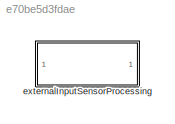
MODEL slx_e70be5d3fdae
KIND library
CONFIG AbsTol = auto
CONFIG EnableMultiTasking = off
CONFIG FixedStep = auto
CONFIG MaxStep = auto
CONFIG MinStep = auto
CONFIG RelTol = 1e-3
CONFIG SampleTimeConstraint = Unconstrained
CONFIG SolverName = VariableStepAuto
CONFIG StartTime = 0.0
CONFIG StopTime = 10.0
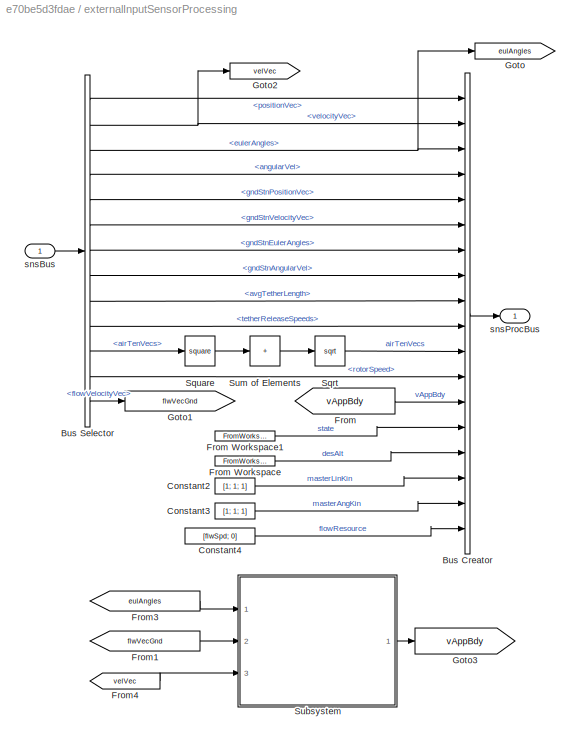
BLOCK [SubSystem] externalInputSensorProcessing
  InitFcn = initializeBussesFromBlock(gcb)
  LoadFcn = initializeBussesFromBlock(gcb)
  Ports = [1, 1]
  RequestExecContextInheritance = off
  StartFcn = initializeBussesFromBlock(gcb)
BLOCK [BusCreator] externalInputSensorProcessing/Bus Creator
  DisplayOption = bar
  InheritFromInputs = on
  Inputs = 18
  NonVirtualBus = on
  OutDataTypeStr = Bus: sensorsProcessingBus
  Ports = [18, 1]
BLOCK [BusSelector] externalInputSensorProcessing/Bus Selector
  OutputSignals = positionVec,velocityVec,eulerAngles,angularVel,gndStnPositionVec,gndStnVelocityVec,gndStnEulerAngles,gndStnAngularVel,avgTetherLength,tetherReleaseSpeeds,airTenVecs,rotorSpeed,flowVelocityVec
  Ports = [1, 13]
BLOCK [Constant] externalInputSensorProcessing/Constant2
  Value = [1; 1; 1]
BLOCK [Constant] externalInputSensorProcessing/Constant3
  Value = [1; 1; 1]
BLOCK [Constant] externalInputSensorProcessing/Constant4
  Value = [flwSpd; 0]
BLOCK [From] externalInputSensorProcessing/From
  GotoTag = vAppBdy
BLOCK [FromWorkspace] externalInputSensorProcessing/From Workspace
  VariableName = tsIn.desAlt
BLOCK [FromWorkspace] externalInputSensorProcessing/From Workspace1
  VariableName = tsIn.state
BLOCK [From] externalInputSensorProcessing/From1
  GotoTag = flwVecGnd
BLOCK [From] externalInputSensorProcessing/From3
  GotoTag = eulAngles
BLOCK [From] externalInputSensorProcessing/From4
  GotoTag = velVec
BLOCK [Goto] externalInputSensorProcessing/Goto
  GotoTag = eulAngles
BLOCK [Goto] externalInputSensorProcessing/Goto1
  GotoTag = flwVecGnd
BLOCK [Goto] externalInputSensorProcessing/Goto2
  GotoTag = velVec
BLOCK [Goto] externalInputSensorProcessing/Goto3
  GotoTag = vAppBdy
BLOCK [Sqrt] externalInputSensorProcessing/Sqrt
BLOCK [Math] externalInputSensorProcessing/Square
  Operator = square
  Ports = [1, 1]
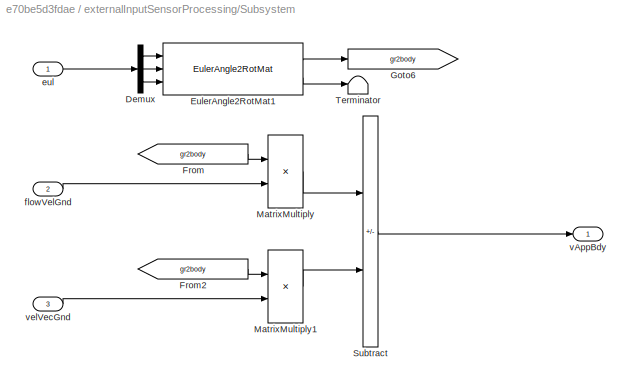
BLOCK [SubSystem] externalInputSensorProcessing/Subsystem
  Ports = [3, 1]
  RequestExecContextInheritance = off
BLOCK [Demux] externalInputSensorProcessing/Subsystem/Demux
  Outputs = 3
  Ports = [1, 3]
BLOCK [Reference] externalInputSensorProcessing/Subsystem/EulerAngle2RotMat1  REF=eulAng2RotMat_ul/EulerAngle2RotMat
  Ports = [3, 2]
  SourceBlock = eulAng2RotMat_ul/EulerAngle2RotMat
  SourceType = SubSystem
BLOCK [From] externalInputSensorProcessing/Subsystem/From
  GotoTag = gr2body
BLOCK [From] externalInputSensorProcessing/Subsystem/From2
  GotoTag = gr2body
BLOCK [Goto] externalInputSensorProcessing/Subsystem/Goto6
  GotoTag = gr2body
BLOCK [Product] externalInputSensorProcessing/Subsystem/MatrixMultiply
  Multiplication = Matrix(*)
  Ports = [2, 1]
BLOCK [Product] externalInputSensorProcessing/Subsystem/MatrixMultiply1
  Multiplication = Matrix(*)
  Ports = [2, 1]
BLOCK [Sum] externalInputSensorProcessing/Subsystem/Subtract
  IconShape = rectangular
  Inputs = +-
  Ports = [2, 1]
BLOCK [Terminator] externalInputSensorProcessing/Subsystem/Terminator
BLOCK [Inport] externalInputSensorProcessing/Subsystem/eul
BLOCK [Inport] externalInputSensorProcessing/Subsystem/flowVelGnd
  Port = 2
BLOCK [Outport] externalInputSensorProcessing/Subsystem/vAppBdy
BLOCK [Inport] externalInputSensorProcessing/Subsystem/velVecGnd
  Port = 3
BLOCK [Sum] externalInputSensorProcessing/Sum of Elements
  IconShape = rectangular
  Inputs = +
  Ports = [1, 1]
BLOCK [Inport] externalInputSensorProcessing/snsBus
  OutDataTypeStr = Bus: sensorsBus
BLOCK [Outport] externalInputSensorProcessing/snsProcBus
  OutDataTypeStr = Bus: sensorsProcessingBus
  VectorParamsAs1DForOutWhenUnconnected = off
LINE externalInputSensorProcessing/Bus Creator:1 -> externalInputSensorProcessing/snsProcBus:1
LINE externalInputSensorProcessing/Bus Selector:1 -> externalInputSensorProcessing/Bus Creator:1
LINE externalInputSensorProcessing/Bus Selector:10 -> externalInputSensorProcessing/Bus Creator:10
LINE externalInputSensorProcessing/Bus Selector:11 -> externalInputSensorProcessing/Square:1
LINE externalInputSensorProcessing/Bus Selector:12 -> externalInputSensorProcessing/Bus Creator:12
LINE externalInputSensorProcessing/Bus Selector:13 -> externalInputSensorProcessing/Goto1:1
NET externalInputSensorProcessing/Bus Selector:2 -> externalInputSensorProcessing/Bus Creator:2, externalInputSensorProcessing/Goto2:1
NET externalInputSensorProcessing/Bus Selector:3 -> externalInputSensorProcessing/Bus Creator:3, externalInputSensorProcessing/Goto:1
LINE externalInputSensorProcessing/Bus Selector:4 -> externalInputSensorProcessing/Bus Creator:4
LINE externalInputSensorProcessing/Bus Selector:5 -> externalInputSensorProcessing/Bus Creator:5
LINE externalInputSensorProcessing/Bus Selector:6 -> externalInputSensorProcessing/Bus Creator:6
LINE externalInputSensorProcessing/Bus Selector:7 -> externalInputSensorProcessing/Bus Creator:7
LINE externalInputSensorProcessing/Bus Selector:8 -> externalInputSensorProcessing/Bus Creator:8
LINE externalInputSensorProcessing/Bus Selector:9 -> externalInputSensorProcessing/Bus Creator:9
LINE externalInputSensorProcessing/Constant2:1 -> externalInputSensorProcessing/Bus Creator:16
LINE externalInputSensorProcessing/Constant3:1 -> externalInputSensorProcessing/Bus Creator:17
LINE externalInputSensorProcessing/Constant4:1 -> externalInputSensorProcessing/Bus Creator:18
LINE externalInputSensorProcessing/From Workspace1:1 -> externalInputSensorProcessing/Bus Creator:14
LINE externalInputSensorProcessing/From Workspace:1 -> externalInputSensorProcessing/Bus Creator:15
LINE externalInputSensorProcessing/From1:1 -> externalInputSensorProcessing/Subsystem:2
LINE externalInputSensorProcessing/From3:1 -> externalInputSensorProcessing/Subsystem:1
LINE externalInputSensorProcessing/From4:1 -> externalInputSensorProcessing/Subsystem:3
LINE externalInputSensorProcessing/From:1 -> externalInputSensorProcessing/Bus Creator:13
LINE externalInputSensorProcessing/Sqrt:1 -> externalInputSensorProcessing/Bus Creator:11
LINE externalInputSensorProcessing/Square:1 -> externalInputSensorProcessing/Sum of Elements:1
LINE externalInputSensorProcessing/Subsystem/Demux:1 -> externalInputSensorProcessing/Subsystem/EulerAngle2RotMat1:1
LINE externalInputSensorProcessing/Subsystem/Demux:2 -> externalInputSensorProcessing/Subsystem/EulerAngle2RotMat1:2
LINE externalInputSensorProcessing/Subsystem/Demux:3 -> externalInputSensorProcessing/Subsystem/EulerAngle2RotMat1:3
LINE externalInputSensorProcessing/Subsystem/EulerAngle2RotMat1:1 -> externalInputSensorProcessing/Subsystem/Goto6:1
LINE externalInputSensorProcessing/Subsystem/EulerAngle2RotMat1:2 -> externalInputSensorProcessing/Subsystem/Terminator:1
LINE externalInputSensorProcessing/Subsystem/From2:1 -> externalInputSensorProcessing/Subsystem/MatrixMultiply1:1
LINE externalInputSensorProcessing/Subsystem/From:1 -> externalInputSensorProcessing/Subsystem/MatrixMultiply:1
LINE externalInputSensorProcessing/Subsystem/MatrixMultiply1:1 -> externalInputSensorProcessing/Subsystem/Subtract:2
LINE externalInputSensorProcessing/Subsystem/MatrixMultiply:1 -> externalInputSensorProcessing/Subsystem/Subtract:1
LINE externalInputSensorProcessing/Subsystem/Subtract:1 -> externalInputSensorProcessing/Subsystem/vAppBdy:1
LINE externalInputSensorProcessing/Subsystem/eul:1 -> externalInputSensorProcessing/Subsystem/Demux:1
LINE externalInputSensorProcessing/Subsystem/flowVelGnd:1 -> externalInputSensorProcessing/Subsystem/MatrixMultiply:2
LINE externalInputSensorProcessing/Subsystem/velVecGnd:1 -> externalInputSensorProcessing/Subsystem/MatrixMultiply1:2
LINE externalInputSensorProcessing/Subsystem:1 -> externalInputSensorProcessing/Goto3:1
LINE externalInputSensorProcessing/Sum of Elements:1 -> externalInputSensorProcessing/Sqrt:1
LINE externalInputSensorProcessing/snsBus:1 -> externalInputSensorProcessing/Bus Selector:1
note: NET lines group one-source signal fan-out (src -> all destinations, sorted); 1:1 wires keep LINE
